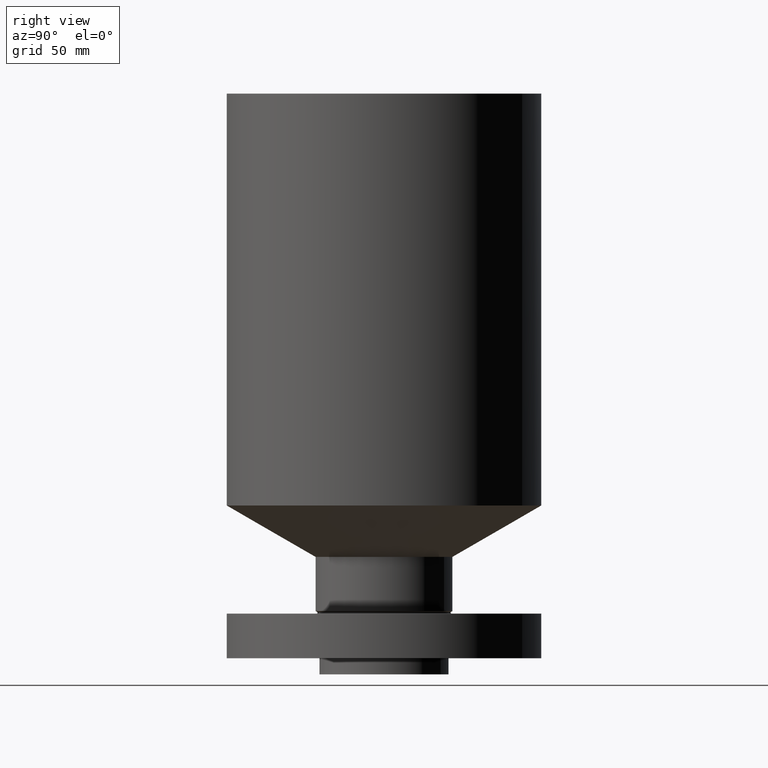
[diagram: clean part render]
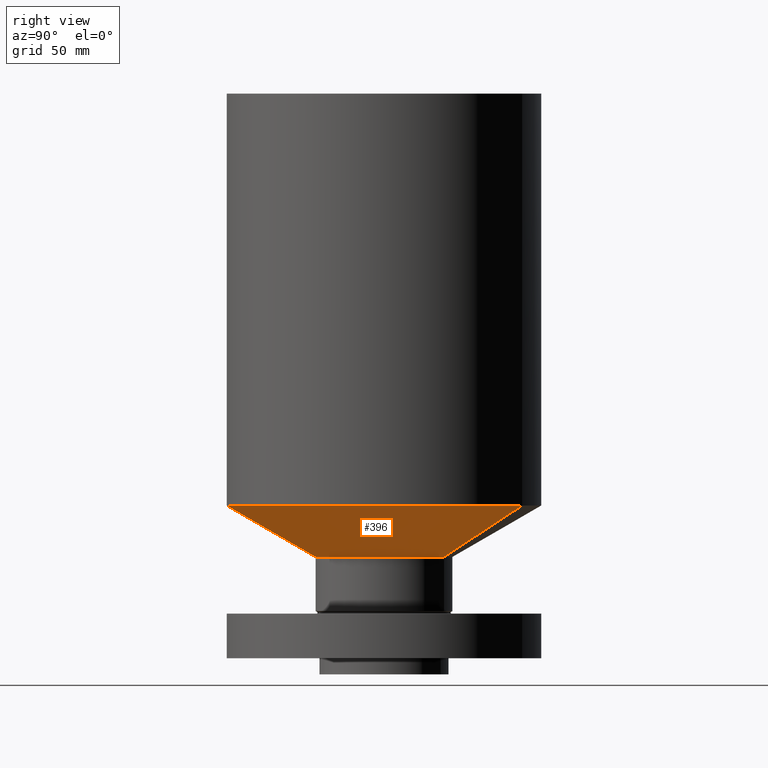
[diagram: same view with one face highlighted and labeled with its STEP entity id]
A machine part, right view. The second image highlights one B-rep face of the part: STEP entity #396.
In plain terms, the highlighted conical surface has half-angle 60 deg.
Its self-contained STEP definition (entity closure, byte-faithful):
#337=AXIS2_PLACEMENT_3D('Circle Axis2P3D',#335,#336,$) ;
#369=AXIS2_PLACEMENT_3D('Cone Axis2P3D',#366,#367,#368) ;
#380=AXIS2_PLACEMENT_3D('Circle Axis2P3D',#378,#379,$) ;
#332=CARTESIAN_POINT('Vertex',(0.508191070922,0.930237515608,1.57000000001)) ;
#335=CARTESIAN_POINT('Axis2P3D Location',(0.,0.,1.57000000001)) ;
#339=CARTESIAN_POINT('Vertex',(-0.508191070922,-0.930237515608,1.57000000001)) ;
#366=CARTESIAN_POINT('Axis2P3D Location',(0.,0.,1.57000000001)) ;
#371=CARTESIAN_POINT('Line Origine',(0.838994692561,1.53576948331,1.96837168575)) ;
#375=CARTESIAN_POINT('Vertex',(1.1697983142,2.14130145102,2.36674337149)) ;
#378=CARTESIAN_POINT('Axis2P3D Location',(0.,0.,2.36674337149)) ;
#382=CARTESIAN_POINT('Vertex',(-1.1697983142,-2.14130145102,2.36674337149)) ;
#385=CARTESIAN_POINT('Line Origine',(-0.838994692561,-1.53576948331,1.96837168575)) ;
#336=DIRECTION('Axis2P3D Direction',(0.,0.,-0.0393700787402)) ;
#367=DIRECTION('Axis2P3D Direction',(-0.,-0.,0.0393700787402)) ;
#368=DIRECTION('Axis2P3D XDirection',(0.0188750212049,0.0345504945626,0.)) ;
#372=DIRECTION('Vector Direction',(0.0163462478604,0.0299216060045,0.0196850393701)) ;
#379=DIRECTION('Axis2P3D Direction',(-0.,0.,0.0393700787402)) ;
#386=DIRECTION('Vector Direction',(-0.0163462478604,-0.0299216060045,0.0196850393701)) ;
#373=VECTOR('Line Direction',#372,0.0393700787402) ;
#387=VECTOR('Line Direction',#386,0.0393700787402) ;
#391=ORIENTED_EDGE('',*,*,#341,.F.) ;
#392=ORIENTED_EDGE('',*,*,#377,.T.) ;
#393=ORIENTED_EDGE('',*,*,#384,.T.) ;
#394=ORIENTED_EDGE('',*,*,#389,.F.) ;
#396=ADVANCED_FACE('PartBody',(#395),#370,.T.) ;
#338=CIRCLE('generated circle',#337,1.06) ;
#381=CIRCLE('generated circle',#380,2.44000000001) ;
#370=CONICAL_SURFACE('Cone',#369,1.06,1.0471975512) ;
#341=EDGE_CURVE('',#333,#340,#338,.T.) ;
#377=EDGE_CURVE('',#333,#376,#374,.T.) ;
#384=EDGE_CURVE('',#376,#383,#381,.F.) ;
#389=EDGE_CURVE('',#340,#383,#388,.T.) ;
#390=EDGE_LOOP('',(#391,#392,#393,#394)) ;
#395=FACE_OUTER_BOUND('',#390,.T.) ;
#374=LINE('Line',#371,#373) ;
#388=LINE('Line',#385,#387) ;
#333=VERTEX_POINT('',#332) ;
#340=VERTEX_POINT('',#339) ;
#376=VERTEX_POINT('',#375) ;
#383=VERTEX_POINT('',#382) ;